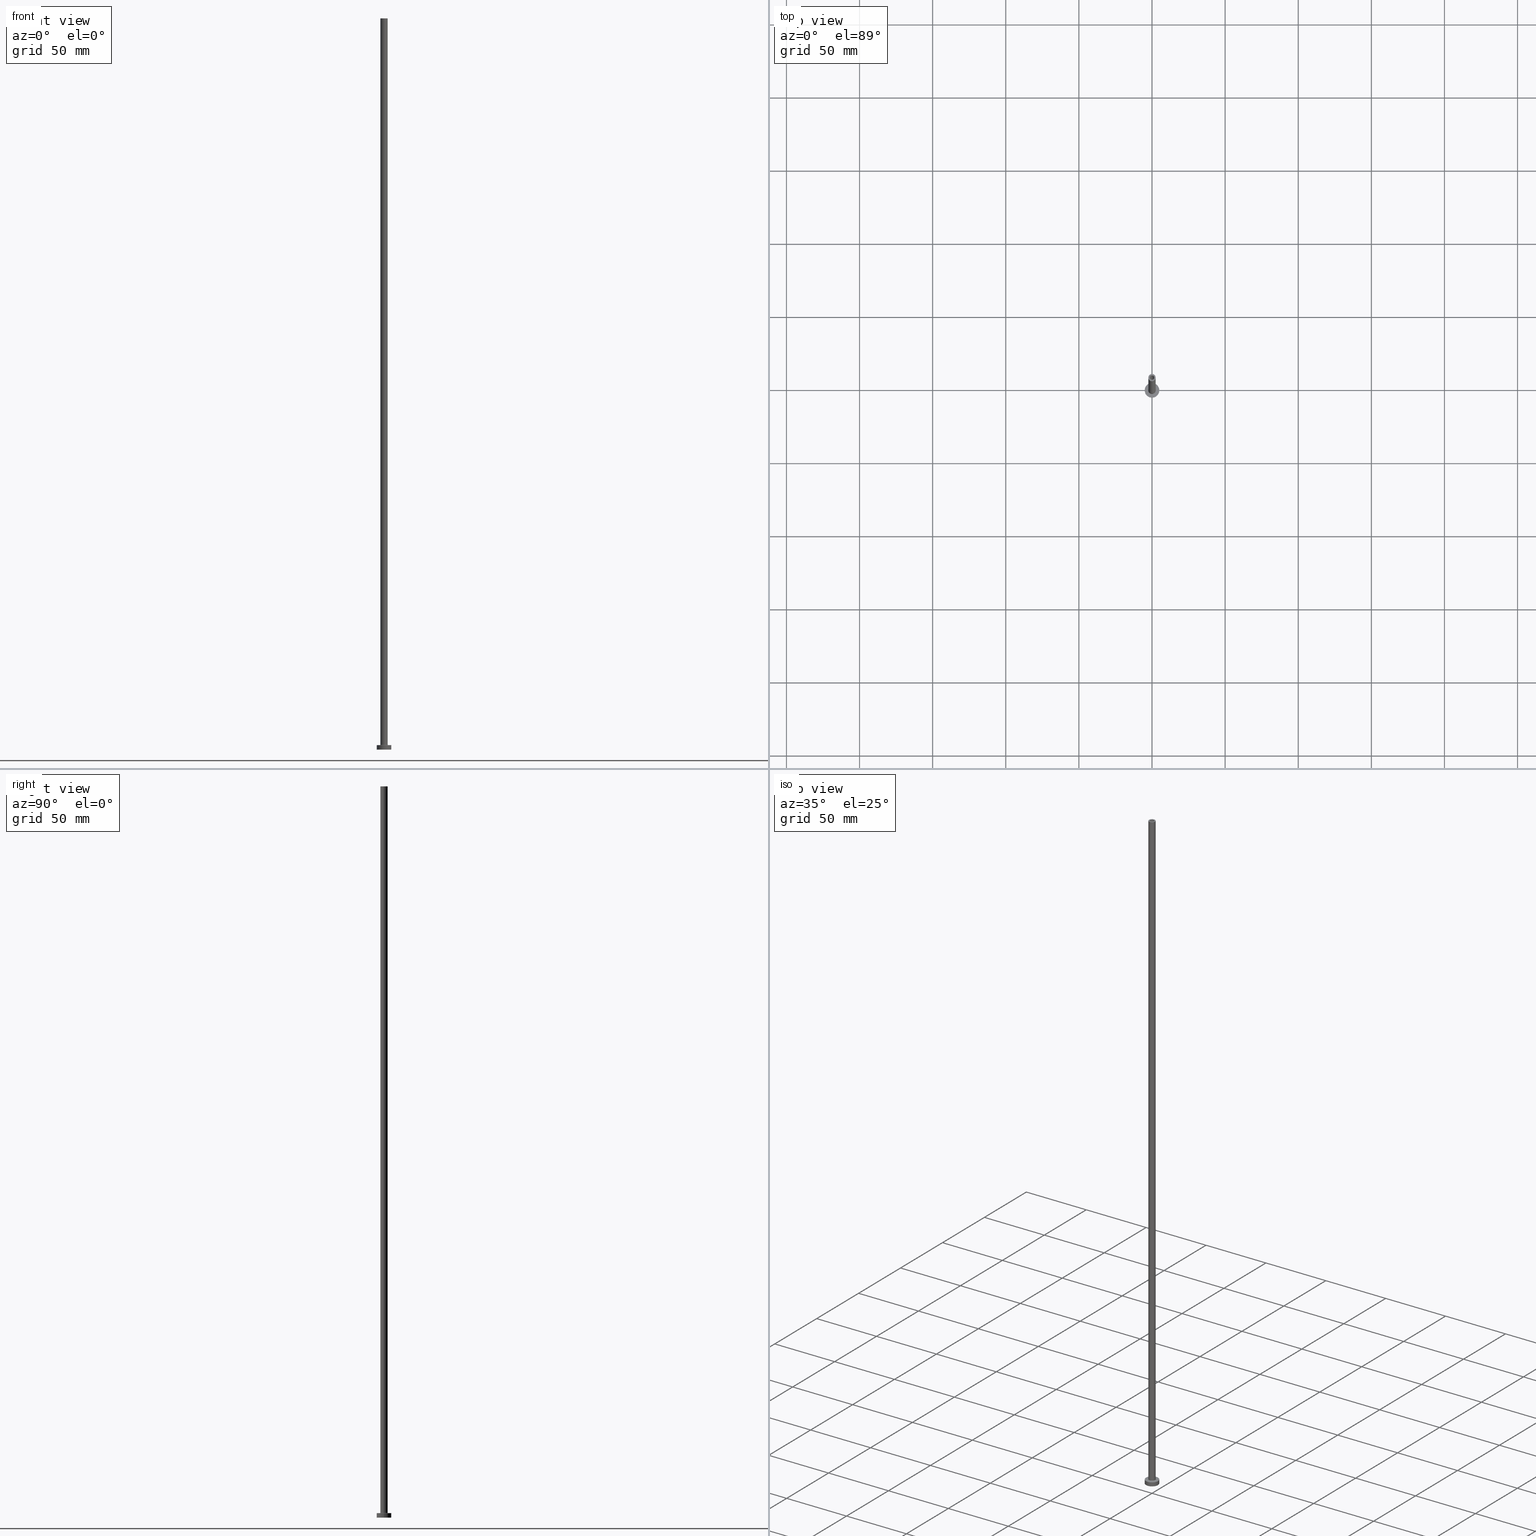
[diagram: canonical four-view strip — front | top / right | iso, engineering-drawing reading convention]
A machine part, canonical four-view strip (front | top / right | iso — engineering-drawing reading convention). The complete STEP part file that produces these views, byte-faithful:
ISO-10303-21;
HEADER;
FILE_DESCRIPTION (( 'STEP AP203' ),
    '1' );
FILE_NAME ('95dd.STEP',
    '2023-02-13T17:58:34',
    ( '' ),
    ( '' ),
    'SwSTEP 2.0',
    'SolidWorks 2019',
    '' );
FILE_SCHEMA (( 'CONFIG_CONTROL_DESIGN' ));
ENDSEC;

DATA;
#1 = DIRECTION ( 'NONE',  ( 1.000000000000000000, 0.000000000000000000, 0.000000000000000000 ) ) ;
#2 = ORIENTED_EDGE ( 'NONE', *, *, #379, .T. ) ;
#3 = PERSON_AND_ORGANIZATION_ROLE ( 'creator' ) ;
#4 = ADVANCED_FACE ( 'NONE', ( #121, #261 ), #418, .T. ) ;
#5 = DIRECTION ( 'NONE',  ( 1.000000000000000000, 0.000000000000000000, 0.000000000000000000 ) ) ;
#6 = EDGE_LOOP ( 'NONE', ( #74, #318 ) ) ;
#7 = DATE_TIME_ROLE ( 'classification_date' ) ;
#8 = EDGE_LOOP ( 'NONE', ( #71, #124, #188, #330 ) ) ;
#9 = APPLICATION_PROTOCOL_DEFINITION ( 'international standard', 'config_control_design', 1994, #94 ) ;
#10 = VECTOR ( 'NONE', #457, 1000.000000000000000 ) ;
#11 = ORIENTED_EDGE ( 'NONE', *, *, #79, .T. ) ;
#12 = CIRCLE ( 'NONE', #268, 2.799999999999999822 ) ;
#13 = DIRECTION ( 'NONE',  ( -0.000000000000000000, -0.000000000000000000, -1.000000000000000000 ) ) ;
#14 = ORIENTED_EDGE ( 'NONE', *, *, #180, .F. ) ;
#15 = LINE ( 'NONE', #51, #194 ) ;
#16 = CC_DESIGN_PERSON_AND_ORGANIZATION_ASSIGNMENT ( #358, #251, ( #206 ) ) ;
#17 = ORIENTED_EDGE ( 'NONE', *, *, #323, .F. ) ;
#18 = DIRECTION ( 'NONE',  ( -1.000000000000000000, 0.000000000000000000, 0.000000000000000000 ) ) ;
#19 = VERTEX_POINT ( 'NONE', #168 ) ;
#20 = CC_DESIGN_SECURITY_CLASSIFICATION ( #265, ( #254 ) ) ;
#21 = CARTESIAN_POINT ( 'NONE',  ( 0.000000000000000000, 0.000000000000000000, 0.000000000000000000 ) ) ;
#22 = ORIENTED_EDGE ( 'NONE', *, *, #401, .T. ) ;
#23 = CARTESIAN_POINT ( 'NONE',  ( 2.500000000000000000, 3.061616997868382648E-16, 3.300000000000025135 ) ) ;
#24 = CARTESIAN_POINT ( 'NONE',  ( 2.500000000000000000, 3.061616997868382648E-16, 500.0000000000000000 ) ) ;
#25 = CARTESIAN_POINT ( 'NONE',  ( 0.000000000000000000, 0.000000000000000000, 0.000000000000000000 ) ) ;
#26 = AXIS2_PLACEMENT_3D ( 'NONE', #300, #407, #374 ) ;
#27 = CARTESIAN_POINT ( 'NONE',  ( 0.000000000000000000, 0.000000000000000000, 500.0000000000000000 ) ) ;
#28 =( GEOMETRIC_REPRESENTATION_CONTEXT ( 3 ) GLOBAL_UNCERTAINTY_ASSIGNED_CONTEXT ( ( #343 ) ) GLOBAL_UNIT_ASSIGNED_CONTEXT ( ( #247, #109, #324 ) ) REPRESENTATION_CONTEXT ( 'NONE', 'WORKASPACE' ) );
#29 = EDGE_CURVE ( 'NONE', #50, #327, #179, .T. ) ;
#30 = DIRECTION ( 'NONE',  ( 1.000000000000000000, 0.000000000000000000, -0.000000000000000000 ) ) ;
#31 = DIRECTION ( 'NONE',  ( -1.000000000000000000, 1.224646799147353207E-16, 0.000000000000000000 ) ) ;
#32 = DIRECTION ( 'NONE',  ( 0.000000000000000000, 0.000000000000000000, 1.000000000000000000 ) ) ;
#33 = CC_DESIGN_PERSON_AND_ORGANIZATION_ASSIGNMENT ( #430, #393, ( #254 ) ) ;
#34 = DIRECTION ( 'NONE',  ( 0.000000000000000000, 0.000000000000000000, 1.000000000000000000 ) ) ;
#35 = CARTESIAN_POINT ( 'NONE',  ( 0.000000000000000000, 0.000000000000000000, 3.000000000000000000 ) ) ;
#36 = AXIS2_PLACEMENT_3D ( 'NONE', #42, #183, #338 ) ;
#37 = ORIENTED_EDGE ( 'NONE', *, *, #127, .F. ) ;
#38 = EDGE_CURVE ( 'NONE', #354, #333, #233, .T. ) ;
#39 = COORDINATED_UNIVERSAL_TIME_OFFSET ( 1, 0, .AHEAD. ) ;
#40 = DIRECTION ( 'NONE',  ( 0.000000000000000000, 0.000000000000000000, 1.000000000000000000 ) ) ;
#41 = ORIENTED_EDGE ( 'NONE', *, *, #401, .F. ) ;
#42 = CARTESIAN_POINT ( 'NONE',  ( 0.000000000000000000, 0.000000000000000000, 0.000000000000000000 ) ) ;
#43 = AXIS2_PLACEMENT_3D ( 'NONE', #269, #385, #310 ) ;
#44 = ORIENTED_EDGE ( 'NONE', *, *, #75, .T. ) ;
#45 = AXIS2_PLACEMENT_3D ( 'NONE', #214, #40, #5 ) ;
#46 = CC_DESIGN_DATE_AND_TIME_ASSIGNMENT ( #282, #285, ( #213 ) ) ;
#47 = APPROVAL_ROLE ( '' ) ;
#48 = CC_DESIGN_PERSON_AND_ORGANIZATION_ASSIGNMENT ( #250, #215, ( #265 ) ) ;
#49 = DIRECTION ( 'NONE',  ( -0.000000000000000000, -0.000000000000000000, -1.000000000000000000 ) ) ;
#50 = VERTEX_POINT ( 'NONE', #23 ) ;
#51 = CARTESIAN_POINT ( 'NONE',  ( 1.500000000000000222, 1.836970198721029934E-16, 500.0000000000000000 ) ) ;
#52 = ORIENTED_EDGE ( 'NONE', *, *, #137, .T. ) ;
#53 = EDGE_LOOP ( 'NONE', ( #212, #256, #152, #111 ) ) ;
#54 = CIRCLE ( 'NONE', #415, 2.500000000000000000 ) ;
#55 = FACE_OUTER_BOUND ( 'NONE', #228, .T. ) ;
#56 = DIRECTION ( 'NONE',  ( 1.000000000000000000, 0.000000000000000000, -0.000000000000000000 ) ) ;
#57 = ADVANCED_FACE ( 'NONE', ( #236, #307 ), #346, .T. ) ;
#58 = DIRECTION ( 'NONE',  ( 1.000000000000000000, 0.000000000000000000, 0.000000000000000000 ) ) ;
#59 = DIRECTION ( 'NONE',  ( 0.000000000000000000, 0.000000000000000000, 1.000000000000000000 ) ) ;
#60 = CARTESIAN_POINT ( 'NONE',  ( 1.500000000000000222, 1.836970198721029934E-16, 500.0000000000000000 ) ) ;
#61 = LINE ( 'NONE', #200, #217 ) ;
#62 = AXIS2_PLACEMENT_3D ( 'NONE', #458, #128, #30 ) ;
#63 = LINE ( 'NONE', #279, #10 ) ;
#64 = AXIS2_PLACEMENT_3D ( 'NONE', #99, #237, #169 ) ;
#65 = DIRECTION ( 'NONE',  ( -0.000000000000000000, -0.000000000000000000, -1.000000000000000000 ) ) ;
#66 = CARTESIAN_POINT ( 'NONE',  ( -2.799999999999999822, 3.429011037612589276E-16, 3.000000000000012434 ) ) ;
#67 = LINE ( 'NONE', #314, #147 ) ;
#68 = PERSON_AND_ORGANIZATION ( #365, #141 ) ;
#69 = CIRCLE ( 'NONE', #120, 1.650000000000000133 ) ;
#70 = AXIS2_PLACEMENT_3D ( 'NONE', #419, #270, #92 ) ;
#71 = ORIENTED_EDGE ( 'NONE', *, *, #274, .F. ) ;
#72 = MECHANICAL_CONTEXT ( 'NONE', #94, 'mechanical' ) ;
#73 = APPROVAL_DATE_TIME ( #437, #131 ) ;
#74 = ORIENTED_EDGE ( 'NONE', *, *, #208, .F. ) ;
#75 = EDGE_CURVE ( 'NONE', #444, #405, #273, .T. ) ;
#76 = ORIENTED_EDGE ( 'NONE', *, *, #391, .F. ) ;
#77 = COORDINATED_UNIVERSAL_TIME_OFFSET ( 1, 0, .AHEAD. ) ;
#78 = VERTEX_POINT ( 'NONE', #422 ) ;
#79 = EDGE_CURVE ( 'NONE', #50, #19, #242, .T. ) ;
#80 = DIRECTION ( 'NONE',  ( 0.000000000000000000, 0.000000000000000000, 1.000000000000000000 ) ) ;
#81 = AXIS2_PLACEMENT_3D ( 'NONE', #166, #59, #238 ) ;
#82 = EDGE_LOOP ( 'NONE', ( #17, #176, #116, #396 ) ) ;
#83 = DIRECTION ( 'NONE',  ( 1.000000000000000000, 0.000000000000000000, 0.000000000000000000 ) ) ;
#84 = VERTEX_POINT ( 'NONE', #88 ) ;
#85 = DIRECTION ( 'NONE',  ( 0.000000000000000000, 0.000000000000000000, 1.000000000000000000 ) ) ;
#86 = ORIENTED_EDGE ( 'NONE', *, *, #291, .T. ) ;
#87 = CARTESIAN_POINT ( 'NONE',  ( 0.000000000000000000, 0.000000000000000000, 3.300000000000025135 ) ) ;
#88 = CARTESIAN_POINT ( 'NONE',  ( -1.650000000000000133, 0.000000000000000000, 455.0000000000000000 ) ) ;
#89 = VECTOR ( 'NONE', #13, 1000.000000000000000 ) ;
#90 = LINE ( 'NONE', #259, #146 ) ;
#91 = DIRECTION ( 'NONE',  ( 0.000000000000000000, 0.000000000000000000, -1.000000000000000000 ) ) ;
#92 = DIRECTION ( 'NONE',  ( -1.000000000000000000, 0.000000000000000000, 0.000000000000000000 ) ) ;
#93 = CARTESIAN_POINT ( 'NONE',  ( -1.500000000000000222, 0.000000000000000000, 500.0000000000000000 ) ) ;
#94 = APPLICATION_CONTEXT ( 'configuration controlled 3d designs of mechanical parts and assemblies' ) ;
#95 = CARTESIAN_POINT ( 'NONE',  ( 0.000000000000000000, 0.000000000000000000, 455.0000000000000000 ) ) ;
#96 = CARTESIAN_POINT ( 'NONE',  ( 1.650000000000000133, 2.020667218593133001E-16, 459.6669047558312400 ) ) ;
#97 = AXIS2_PLACEMENT_3D ( 'NONE', #126, #443, #149 ) ;
#98 = FACE_OUTER_BOUND ( 'NONE', #53, .T. ) ;
#99 = CARTESIAN_POINT ( 'NONE',  ( 0.000000000000000000, 0.000000000000000000, 455.0000000000000000 ) ) ;
#100 = EDGE_CURVE ( 'NONE', #225, #182, #276, .T. ) ;
#101 = CARTESIAN_POINT ( 'NONE',  ( -5.000000000000000000, 0.000000000000000000, 0.000000000000000000 ) ) ;
#102 = ORIENTED_EDGE ( 'NONE', *, *, #38, .F. ) ;
#103 = PRODUCT_DEFINITION_SHAPE ( 'NONE', 'NONE',  #213 ) ;
#104 = CC_DESIGN_APPROVAL ( #321, ( #265 ) ) ;
#105 = APPROVAL_STATUS ( 'not_yet_approved' ) ;
#106 = CIRCLE ( 'NONE', #417, 2.500000000000000000 ) ;
#107 = ORIENTED_EDGE ( 'NONE', *, *, #379, .F. ) ;
#108 = CC_DESIGN_PERSON_AND_ORGANIZATION_ASSIGNMENT ( #316, #3, ( #213 ) ) ;
#109 =( NAMED_UNIT ( * ) PLANE_ANGLE_UNIT ( ) SI_UNIT ( $, .RADIAN. ) );
#110 = APPLICATION_CONTEXT ( 'configuration controlled 3d designs of mechanical parts and assemblies' ) ;
#111 = ORIENTED_EDGE ( 'NONE', *, *, #38, .T. ) ;
#112 = LOCAL_TIME ( 18, 58, 34.00000000000000000, #398 ) ;
#113 = COORDINATED_UNIVERSAL_TIME_OFFSET ( 1, 0, .AHEAD. ) ;
#114 = CIRCLE ( 'NONE', #210, 2.500000000000000000 ) ;
#115 = ORIENTED_EDGE ( 'NONE', *, *, #172, .F. ) ;
#116 = ORIENTED_EDGE ( 'NONE', *, *, #218, .T. ) ;
#117 = FACE_OUTER_BOUND ( 'NONE', #216, .T. ) ;
#118 = EDGE_LOOP ( 'NONE', ( #258, #294, #11, #361 ) ) ;
#119 = LINE ( 'NONE', #326, #89 ) ;
#120 = AXIS2_PLACEMENT_3D ( 'NONE', #21, #156, #449 ) ;
#121 = FACE_BOUND ( 'NONE', #219, .T. ) ;
#122 = AXIS2_PLACEMENT_3D ( 'NONE', #161, #34, #58 ) ;
#123 = FACE_BOUND ( 'NONE', #412, .T. ) ;
#124 = ORIENTED_EDGE ( 'NONE', *, *, #204, .T. ) ;
#125 = EDGE_LOOP ( 'NONE', ( #148, #252 ) ) ;
#126 = CARTESIAN_POINT ( 'NONE',  ( 0.000000000000000000, 0.000000000000000000, 455.0000000000000000 ) ) ;
#127 = EDGE_CURVE ( 'NONE', #84, #444, #171, .T. ) ;
#128 = DIRECTION ( 'NONE',  ( 0.000000000000000000, 0.000000000000000000, 1.000000000000000000 ) ) ;
#129 = FACE_OUTER_BOUND ( 'NONE', #433, .T. ) ;
#130 = DIRECTION ( 'NONE',  ( 1.000000000000000000, 0.000000000000000000, 0.000000000000000000 ) ) ;
#131 = APPROVAL ( #105, 'NEUR�EN�' ) ;
#132 = CARTESIAN_POINT ( 'NONE',  ( 5.000000000000000000, 6.123233995736766282E-16, 0.000000000000000000 ) ) ;
#133 = DIRECTION ( 'NONE',  ( 1.000000000000000000, 0.000000000000000000, 0.000000000000000000 ) ) ;
#134 = DIRECTION ( 'NONE',  ( 0.000000000000000000, 0.000000000000000000, 1.000000000000000000 ) ) ;
#135 = DIRECTION ( 'NONE',  ( -1.000000000000000000, 0.000000000000000000, 0.000000000000000000 ) ) ;
#136 = CYLINDRICAL_SURFACE ( 'NONE', #70, 5.000000000000000000 ) ;
#137 = EDGE_CURVE ( 'NONE', #333, #354, #319, .T. ) ;
#138 = PERSON_AND_ORGANIZATION_ROLE ( 'design_supplier' ) ;
#139 = APPROVAL_STATUS ( 'not_yet_approved' ) ;
#140 = TOROIDAL_SURFACE ( 'NONE', #241, 2.799999999999999822, 0.2999999999999999889 ) ;
#141 = ORGANIZATION ( 'NEUR�EN�', 'NEUR�EN�', '' ) ;
#142 = VERTEX_POINT ( 'NONE', #93 ) ;
#143 = PERSON_AND_ORGANIZATION ( #365, #141 ) ;
#144 = ORIENTED_EDGE ( 'NONE', *, *, #274, .T. ) ;
#145 = CALENDAR_DATE ( 2023, 13, 2 ) ;
#146 = VECTOR ( 'NONE', #452, 1000.000000000000000 ) ;
#147 = VECTOR ( 'NONE', #340, 1000.000000000000000 ) ;
#148 = ORIENTED_EDGE ( 'NONE', *, *, #100, .T. ) ;
#149 = DIRECTION ( 'NONE',  ( 1.000000000000000000, 0.000000000000000000, -0.000000000000000000 ) ) ;
#150 = EDGE_LOOP ( 'NONE', ( #427, #144, #41, #76 ) ) ;
#151 = DIRECTION ( 'NONE',  ( 1.000000000000000000, 0.000000000000000000, 0.000000000000000000 ) ) ;
#152 = ORIENTED_EDGE ( 'NONE', *, *, #180, .T. ) ;
#153 = CARTESIAN_POINT ( 'NONE',  ( -2.500000000000000000, 0.000000000000000000, 500.0000000000000000 ) ) ;
#154 = AXIS2_PLACEMENT_3D ( 'NONE', #404, #80, #151 ) ;
#155 = EDGE_LOOP ( 'NONE', ( #102, #264 ) ) ;
#156 = DIRECTION ( 'NONE',  ( -0.000000000000000000, -0.000000000000000000, -1.000000000000000000 ) ) ;
#157 = ORIENTED_EDGE ( 'NONE', *, *, #75, .F. ) ;
#158 = EDGE_CURVE ( 'NONE', #182, #333, #61, .T. ) ;
#159 = PLANE ( 'NONE',  #97 ) ;
#160 = DIRECTION ( 'NONE',  ( 1.000000000000000000, 0.000000000000000000, 0.000000000000000000 ) ) ;
#161 = CARTESIAN_POINT ( 'NONE',  ( 0.000000000000000000, 0.000000000000000000, 3.000000000000000000 ) ) ;
#162 = CARTESIAN_POINT ( 'NONE',  ( 0.000000000000000000, 0.000000000000000000, 455.0000000000000000 ) ) ;
#163 = VECTOR ( 'NONE', #381, 1000.000000000000000 ) ;
#164 = DIRECTION ( 'NONE',  ( 1.000000000000000000, 0.000000000000000000, 0.000000000000000000 ) ) ;
#165 = ADVANCED_FACE ( 'NONE', ( #205, #453 ), #349, .F. ) ;
#166 = CARTESIAN_POINT ( 'NONE',  ( 0.000000000000000000, 0.000000000000000000, 3.000000000000000000 ) ) ;
#167 = DIRECTION ( 'NONE',  ( -0.000000000000000000, -0.000000000000000000, -1.000000000000000000 ) ) ;
#168 = CARTESIAN_POINT ( 'NONE',  ( -2.500000000000000000, 0.000000000000000000, 3.300000000000025135 ) ) ;
#169 = DIRECTION ( 'NONE',  ( 1.000000000000000000, 0.000000000000000000, 0.000000000000000000 ) ) ;
#170 = CC_DESIGN_APPROVAL ( #131, ( #254 ) ) ;
#171 = CIRCLE ( 'NONE', #428, 1.650000000000000133 ) ;
#172 = EDGE_CURVE ( 'NONE', #19, #50, #54, .T. ) ;
#173 = CARTESIAN_POINT ( 'NONE',  ( -1.650000000000000133, 0.000000000000000000, 459.6669047558312400 ) ) ;
#174 = ADVANCED_FACE ( 'NONE', ( #335 ), #193, .T. ) ;
#175 = CALENDAR_DATE ( 2023, 13, 2 ) ;
#176 = ORIENTED_EDGE ( 'NONE', *, *, #397, .F. ) ;
#177 = APPROVAL_PERSON_ORGANIZATION ( #143, #321, #47 ) ;
#178 = DIRECTION ( 'NONE',  ( 0.000000000000000000, 0.000000000000000000, -1.000000000000000000 ) ) ;
#179 = CIRCLE ( 'NONE', #387, 0.2999999999999999334 ) ;
#180 = EDGE_CURVE ( 'NONE', #225, #354, #90, .T. ) ;
#181 = DIRECTION ( 'NONE',  ( -1.000000000000000000, 0.000000000000000000, 0.000000000000000000 ) ) ;
#182 = VERTEX_POINT ( 'NONE', #377 ) ;
#183 = DIRECTION ( 'NONE',  ( -0.000000000000000000, -0.000000000000000000, -1.000000000000000000 ) ) ;
#184 = CIRCLE ( 'NONE', #122, 5.000000000000000000 ) ;
#185 = ORIENTED_EDGE ( 'NONE', *, *, #257, .F. ) ;
#186 = EDGE_CURVE ( 'NONE', #142, #448, #434, .T. ) ;
#187 = CARTESIAN_POINT ( 'NONE',  ( 0.000000000000000000, 0.000000000000000000, 459.6669047558312400 ) ) ;
#188 = ORIENTED_EDGE ( 'NONE', *, *, #391, .T. ) ;
#189 = CARTESIAN_POINT ( 'NONE',  ( 0.000000000000000000, 0.000000000000000000, 500.0000000000000000 ) ) ;
#190 = EDGE_CURVE ( 'NONE', #405, #366, #249, .T. ) ;
#191 = ORIENTED_EDGE ( 'NONE', *, *, #29, .F. ) ;
#192 = CC_DESIGN_APPROVAL ( #244, ( #213 ) ) ;
#193 = CYLINDRICAL_SURFACE ( 'NONE', #26, 2.500000000000000000 ) ;
#194 = VECTOR ( 'NONE', #293, 1000.000000000000000 ) ;
#195 = ORIENTED_EDGE ( 'NONE', *, *, #186, .F. ) ;
#196 = CARTESIAN_POINT ( 'NONE',  ( 0.000000000000000000, 0.000000000000000000, 3.300000000000025135 ) ) ;
#197 = CYLINDRICAL_SURFACE ( 'NONE', #353, 1.500000000000000222 ) ;
#198 = CARTESIAN_POINT ( 'NONE',  ( 2.799999999999999822, 0.000000000000000000, 3.300000000000025135 ) ) ;
#199 = FACE_OUTER_BOUND ( 'NONE', #8, .T. ) ;
#200 = CARTESIAN_POINT ( 'NONE',  ( 5.000000000000000000, 6.123233995736766282E-16, 3.000000000000000000 ) ) ;
#201 = CIRCLE ( 'NONE', #224, 1.500000000000000222 ) ;
#202 = DIRECTION ( 'NONE',  ( 1.224646799147353207E-16, 1.000000000000000000, -0.000000000000000000 ) ) ;
#203 = DESIGN_CONTEXT ( 'detailed design', #110, 'design' ) ;
#204 = EDGE_CURVE ( 'NONE', #448, #142, #281, .T. ) ;
#205 = FACE_BOUND ( 'NONE', #6, .T. ) ;
#206 = PRODUCT ( '95dd', '95dd', '', ( #72 ) ) ;
#207 = FACE_OUTER_BOUND ( 'NONE', #150, .T. ) ;
#208 = EDGE_CURVE ( 'NONE', #366, #405, #69, .T. ) ;
#209 = DIRECTION ( 'NONE',  ( 0.000000000000000000, 0.000000000000000000, 1.000000000000000000 ) ) ;
#210 = AXIS2_PLACEMENT_3D ( 'NONE', #411, #275, #306 ) ;
#211 = PERSON_AND_ORGANIZATION ( #365, #141 ) ;
#212 = ORIENTED_EDGE ( 'NONE', *, *, #158, .F. ) ;
#213 = PRODUCT_DEFINITION ( 'NEZN�M�', '', #254, #203 ) ;
#214 = CARTESIAN_POINT ( 'NONE',  ( 0.000000000000000000, 0.000000000000000000, 0.000000000000000000 ) ) ;
#215 = PERSON_AND_ORGANIZATION_ROLE ( 'classification_officer' ) ;
#216 = EDGE_LOOP ( 'NONE', ( #115, #2, #185, #191 ) ) ;
#217 = VECTOR ( 'NONE', #65, 1000.000000000000000 ) ;
#218 = EDGE_CURVE ( 'NONE', #289, #19, #119, .T. ) ;
#219 = EDGE_LOOP ( 'NONE', ( #439, #315 ) ) ;
#220 = ADVANCED_FACE ( 'NONE', ( #296 ), #140, .F. ) ;
#221 = EDGE_LOOP ( 'NONE', ( #442, #86 ) ) ;
#222 = CARTESIAN_POINT ( 'NONE',  ( 0.000000000000000000, 0.000000000000000000, 3.000000000000000000 ) ) ;
#223 = AXIS2_PLACEMENT_3D ( 'NONE', #378, #32, #56 ) ;
#224 = AXIS2_PLACEMENT_3D ( 'NONE', #351, #134, #424 ) ;
#225 = VERTEX_POINT ( 'NONE', #413 ) ;
#226 = ADVANCED_FACE ( 'NONE', ( #123, #55 ), #159, .F. ) ;
#227 = FACE_OUTER_BOUND ( 'NONE', #82, .T. ) ;
#228 = EDGE_LOOP ( 'NONE', ( #37, #356 ) ) ;
#229 = CARTESIAN_POINT ( 'NONE',  ( 0.000000000000000000, 0.000000000000000000, 500.0000000000000000 ) ) ;
#230 = VERTEX_POINT ( 'NONE', #371 ) ;
#231 = LOCAL_TIME ( 18, 58, 34.00000000000000000, #39 ) ;
#232 = DIRECTION ( 'NONE',  ( 0.000000000000000000, 0.000000000000000000, 1.000000000000000000 ) ) ;
#233 = CIRCLE ( 'NONE', #446, 5.000000000000000000 ) ;
#234 = DIRECTION ( 'NONE',  ( 0.000000000000000000, 0.000000000000000000, 1.000000000000000000 ) ) ;
#235 = DIRECTION ( 'NONE',  ( 0.000000000000000000, 0.000000000000000000, 1.000000000000000000 ) ) ;
#236 = FACE_BOUND ( 'NONE', #260, .T. ) ;
#237 = DIRECTION ( 'NONE',  ( 0.000000000000000000, 0.000000000000000000, 1.000000000000000000 ) ) ;
#238 = DIRECTION ( 'NONE',  ( 1.000000000000000000, 0.000000000000000000, -0.000000000000000000 ) ) ;
#239 = CARTESIAN_POINT ( 'NONE',  ( 0.000000000000000000, 0.000000000000000000, 500.0000000000000000 ) ) ;
#240 = DIRECTION ( 'NONE',  ( 1.000000000000000000, 0.000000000000000000, 0.000000000000000000 ) ) ;
#241 = AXIS2_PLACEMENT_3D ( 'NONE', #87, #232, #368 ) ;
#242 = CIRCLE ( 'NONE', #43, 2.500000000000000000 ) ;
#243 = DIRECTION ( 'NONE',  ( -1.000000000000000000, 0.000000000000000000, 0.000000000000000000 ) ) ;
#244 = APPROVAL ( #139, 'NEUR�EN�' ) ;
#245 = CARTESIAN_POINT ( 'NONE',  ( 0.000000000000000000, 0.000000000000000000, 3.000000000000000000 ) ) ;
#246 = ADVANCED_FACE ( 'NONE', ( #266 ), #416, .F. ) ;
#247 =( LENGTH_UNIT ( ) NAMED_UNIT ( * ) SI_UNIT ( .MILLI., .METRE. ) );
#248 = ADVANCED_FACE ( 'NONE', ( #117 ), #360, .F. ) ;
#249 = CIRCLE ( 'NONE', #36, 1.650000000000000133 ) ;
#250 = PERSON_AND_ORGANIZATION ( #365, #141 ) ;
#251 = PERSON_AND_ORGANIZATION_ROLE ( 'design_owner' ) ;
#252 = ORIENTED_EDGE ( 'NONE', *, *, #357, .T. ) ;
#253 = DATE_AND_TIME ( #320, #231 ) ;
#254 = PRODUCT_DEFINITION_FORMATION_WITH_SPECIFIED_SOURCE ( 'LIBOVOLN�', '', #206, .NOT_KNOWN. ) ;
#255 = ORIENTED_EDGE ( 'NONE', *, *, #190, .T. ) ;
#256 = ORIENTED_EDGE ( 'NONE', *, *, #100, .F. ) ;
#257 = EDGE_CURVE ( 'NONE', #327, #325, #352, .T. ) ;
#258 = ORIENTED_EDGE ( 'NONE', *, *, #291, .F. ) ;
#259 = CARTESIAN_POINT ( 'NONE',  ( -5.000000000000000000, 0.000000000000000000, 3.000000000000000000 ) ) ;
#260 = EDGE_LOOP ( 'NONE', ( #195, #435 ) ) ;
#261 = FACE_OUTER_BOUND ( 'NONE', #125, .T. ) ;
#262 = CYLINDRICAL_SURFACE ( 'NONE', #313, 2.500000000000000000 ) ;
#263 = ORIENTED_EDGE ( 'NONE', *, *, #329, .F. ) ;
#264 = ORIENTED_EDGE ( 'NONE', *, *, #137, .F. ) ;
#265 = SECURITY_CLASSIFICATION ( '', '', #280 ) ;
#266 = FACE_OUTER_BOUND ( 'NONE', #372, .T. ) ;
#267 = VECTOR ( 'NONE', #312, 1000.000000000000000 ) ;
#268 = AXIS2_PLACEMENT_3D ( 'NONE', #35, #455, #1 ) ;
#269 = CARTESIAN_POINT ( 'NONE',  ( 0.000000000000000000, 0.000000000000000000, 3.300000000000025135 ) ) ;
#270 = DIRECTION ( 'NONE',  ( -0.000000000000000000, -0.000000000000000000, -1.000000000000000000 ) ) ;
#271 = CARTESIAN_POINT ( 'NONE',  ( 0.000000000000000000, 0.000000000000000000, 0.000000000000000000 ) ) ;
#272 = DIRECTION ( 'NONE',  ( 0.000000000000000000, 0.000000000000000000, -1.000000000000000000 ) ) ;
#273 = LINE ( 'NONE', #96, #163 ) ;
#274 = EDGE_CURVE ( 'NONE', #448, #230, #15, .T. ) ;
#275 = DIRECTION ( 'NONE',  ( 0.000000000000000000, 0.000000000000000000, 1.000000000000000000 ) ) ;
#276 = CIRCLE ( 'NONE', #295, 5.000000000000000000 ) ;
#277 = AXIS2_PLACEMENT_3D ( 'NONE', #95, #386, #164 ) ;
#278 = LINE ( 'NONE', #173, #267 ) ;
#279 = CARTESIAN_POINT ( 'NONE',  ( 2.500000000000000000, 3.061616997868382648E-16, 500.0000000000000000 ) ) ;
#280 = SECURITY_CLASSIFICATION_LEVEL ( 'unclassified' ) ;
#281 = CIRCLE ( 'NONE', #286, 1.500000000000000222 ) ;
#282 = DATE_AND_TIME ( #145, #460 ) ;
#283 = ORIENTED_EDGE ( 'NONE', *, *, #370, .T. ) ;
#284 = ADVANCED_FACE ( 'NONE', ( #227 ), #262, .T. ) ;
#285 = DATE_TIME_ROLE ( 'creation_date' ) ;
#286 = AXIS2_PLACEMENT_3D ( 'NONE', #299, #85, #447 ) ;
#287 = APPROVAL_ROLE ( '' ) ;
#288 = AXIS2_PLACEMENT_3D ( 'NONE', #461, #202, #31 ) ;
#289 = VERTEX_POINT ( 'NONE', #153 ) ;
#290 = DIRECTION ( 'NONE',  ( 0.000000000000000000, 0.000000000000000000, -1.000000000000000000 ) ) ;
#291 = EDGE_CURVE ( 'NONE', #400, #289, #114, .T. ) ;
#292 = ORIENTED_EDGE ( 'NONE', *, *, #158, .T. ) ;
#293 = DIRECTION ( 'NONE',  ( 0.000000000000000000, 0.000000000000000000, -1.000000000000000000 ) ) ;
#294 = ORIENTED_EDGE ( 'NONE', *, *, #323, .T. ) ;
#295 = AXIS2_PLACEMENT_3D ( 'NONE', #301, #456, #240 ) ;
#296 = FACE_OUTER_BOUND ( 'NONE', #402, .T. ) ;
#297 = CIRCLE ( 'NONE', #277, 1.500000000000000222 ) ;
#298 = ORIENTED_EDGE ( 'NONE', *, *, #127, .T. ) ;
#299 = CARTESIAN_POINT ( 'NONE',  ( 0.000000000000000000, 0.000000000000000000, 500.0000000000000000 ) ) ;
#300 = CARTESIAN_POINT ( 'NONE',  ( 0.000000000000000000, 0.000000000000000000, 500.0000000000000000 ) ) ;
#301 = CARTESIAN_POINT ( 'NONE',  ( 0.000000000000000000, 0.000000000000000000, 3.000000000000000000 ) ) ;
#302 = CARTESIAN_POINT ( 'NONE',  ( 1.650000000000000133, 2.020667218593133001E-16, 0.000000000000000000 ) ) ;
#303 = LOCAL_TIME ( 18, 58, 34.00000000000000000, #77 ) ;
#304 = AXIS2_PLACEMENT_3D ( 'NONE', #187, #290, #440 ) ;
#305 = DIRECTION ( 'NONE',  ( 0.000000000000000000, 0.000000000000000000, 1.000000000000000000 ) ) ;
#306 = DIRECTION ( 'NONE',  ( 1.000000000000000000, 0.000000000000000000, 0.000000000000000000 ) ) ;
#307 = FACE_OUTER_BOUND ( 'NONE', #221, .T. ) ;
#308 = CC_DESIGN_PERSON_AND_ORGANIZATION_ASSIGNMENT ( #68, #138, ( #254 ) ) ;
#309 = DIRECTION ( 'NONE',  ( 1.000000000000000000, 0.000000000000000000, 0.000000000000000000 ) ) ;
#310 = DIRECTION ( 'NONE',  ( 1.000000000000000000, 0.000000000000000000, 0.000000000000000000 ) ) ;
#311 = APPROVAL_PERSON_ORGANIZATION ( #211, #131, #287 ) ;
#312 = DIRECTION ( 'NONE',  ( 0.000000000000000000, 0.000000000000000000, -1.000000000000000000 ) ) ;
#313 = AXIS2_PLACEMENT_3D ( 'NONE', #189, #332, #18 ) ;
#314 = CARTESIAN_POINT ( 'NONE',  ( -1.500000000000000222, 0.000000000000000000, 500.0000000000000000 ) ) ;
#315 = ORIENTED_EDGE ( 'NONE', *, *, #438, .T. ) ;
#316 = PERSON_AND_ORGANIZATION ( #365, #141 ) ;
#317 = ORIENTED_EDGE ( 'NONE', *, *, #79, .F. ) ;
#318 = ORIENTED_EDGE ( 'NONE', *, *, #190, .F. ) ;
#319 = CIRCLE ( 'NONE', #445, 5.000000000000000000 ) ;
#320 = CALENDAR_DATE ( 2023, 13, 2 ) ;
#321 = APPROVAL ( #375, 'NEUR�EN�' ) ;
#322 = APPLICATION_PROTOCOL_DEFINITION ( 'international standard', 'config_control_design', 1994, #110 ) ;
#323 = EDGE_CURVE ( 'NONE', #400, #50, #63, .T. ) ;
#324 =( NAMED_UNIT ( * ) SI_UNIT ( $, .STERADIAN. ) SOLID_ANGLE_UNIT ( ) );
#325 = VERTEX_POINT ( 'NONE', #66 ) ;
#326 = CARTESIAN_POINT ( 'NONE',  ( -2.500000000000000000, 0.000000000000000000, 500.0000000000000000 ) ) ;
#327 = VERTEX_POINT ( 'NONE', #347 ) ;
#328 = DIRECTION ( 'NONE',  ( 1.000000000000000000, 0.000000000000000000, 0.000000000000000000 ) ) ;
#329 = EDGE_CURVE ( 'NONE', #84, #366, #278, .T. ) ;
#330 = ORIENTED_EDGE ( 'NONE', *, *, #370, .F. ) ;
#331 = SHAPE_DEFINITION_REPRESENTATION ( #103, #384 ) ;
#332 = DIRECTION ( 'NONE',  ( -0.000000000000000000, -0.000000000000000000, -1.000000000000000000 ) ) ;
#333 = VERTEX_POINT ( 'NONE', #132 ) ;
#334 = AXIS2_PLACEMENT_3D ( 'NONE', #222, #49, #328 ) ;
#335 = FACE_OUTER_BOUND ( 'NONE', #118, .T. ) ;
#336 = ORIENTED_EDGE ( 'NONE', *, *, #426, .T. ) ;
#337 = DATE_AND_TIME ( #373, #303 ) ;
#338 = DIRECTION ( 'NONE',  ( 1.000000000000000000, 0.000000000000000000, 0.000000000000000000 ) ) ;
#339 = DIRECTION ( 'NONE',  ( 0.000000000000000000, 0.000000000000000000, 1.000000000000000000 ) ) ;
#340 = DIRECTION ( 'NONE',  ( 0.000000000000000000, 0.000000000000000000, -1.000000000000000000 ) ) ;
#341 = DIRECTION ( 'NONE',  ( 0.000000000000000000, -1.000000000000000000, 0.000000000000000000 ) ) ;
#342 = CYLINDRICAL_SURFACE ( 'NONE', #395, 1.500000000000000222 ) ;
#343 = UNCERTAINTY_MEASURE_WITH_UNIT (LENGTH_MEASURE( 1.000000000000000082E-05 ), #247, 'distance_accuracy_value', 'NONE');
#344 = ADVANCED_FACE ( 'NONE', ( #380 ), #350, .F. ) ;
#345 = CIRCLE ( 'NONE', #64, 1.650000000000000133 ) ;
#346 = PLANE ( 'NONE',  #62 ) ;
#347 = CARTESIAN_POINT ( 'NONE',  ( 2.799999999999999822, 0.000000000000000000, 3.000000000000012434 ) ) ;
#348 = ADVANCED_FACE ( 'NONE', ( #207 ), #197, .F. ) ;
#349 = PLANE ( 'NONE',  #223 ) ;
#350 = CYLINDRICAL_SURFACE ( 'NONE', #394, 1.650000000000000133 ) ;
#351 = CARTESIAN_POINT ( 'NONE',  ( 0.000000000000000000, 0.000000000000000000, 455.0000000000000000 ) ) ;
#352 = CIRCLE ( 'NONE', #334, 2.799999999999999822 ) ;
#353 = AXIS2_PLACEMENT_3D ( 'NONE', #239, #272, #243 ) ;
#354 = VERTEX_POINT ( 'NONE', #101 ) ;
#355 = PERSON_AND_ORGANIZATION ( #365, #141 ) ;
#356 = ORIENTED_EDGE ( 'NONE', *, *, #426, .F. ) ;
#357 = EDGE_CURVE ( 'NONE', #182, #225, #184, .T. ) ;
#358 = PERSON_AND_ORGANIZATION ( #365, #141 ) ;
#359 = APPROVAL_DATE_TIME ( #399, #244 ) ;
#360 = TOROIDAL_SURFACE ( 'NONE', #154, 2.799999999999999822, 0.2999999999999999889 ) ;
#361 = ORIENTED_EDGE ( 'NONE', *, *, #218, .F. ) ;
#362 = APPROVAL_ROLE ( '' ) ;
#363 = MANIFOLD_SOLID_BREP ( 'Odebrat vysunut�m4', #376 ) ;
#364 = CALENDAR_DATE ( 2023, 13, 2 ) ;
#365 = PERSON ( 'NEUR�EN�', 'NEUR�EN�', 'NEUR�EN�', ('NEUR�EN�'), ('NEUR�EN�'), ('NEUR�EN�') ) ;
#366 = VERTEX_POINT ( 'NONE', #421 ) ;
#367 = AXIS2_PLACEMENT_3D ( 'NONE', #245, #167, #135 ) ;
#368 = DIRECTION ( 'NONE',  ( 1.000000000000000000, 0.000000000000000000, 0.000000000000000000 ) ) ;
#369 = EDGE_LOOP ( 'NONE', ( #157, #336, #414, #431 ) ) ;
#370 = EDGE_CURVE ( 'NONE', #230, #78, #297, .T. ) ;
#371 = CARTESIAN_POINT ( 'NONE',  ( 1.500000000000000222, 1.836970198721029934E-16, 455.0000000000000000 ) ) ;
#372 = EDGE_LOOP ( 'NONE', ( #298, #44, #255, #263 ) ) ;
#373 = CALENDAR_DATE ( 2023, 13, 2 ) ;
#374 = DIRECTION ( 'NONE',  ( -1.000000000000000000, 0.000000000000000000, 0.000000000000000000 ) ) ;
#375 = APPROVAL_STATUS ( 'not_yet_approved' ) ;
#376 = CLOSED_SHELL ( 'NONE', ( #348, #246, #248, #174, #441, #382, #4, #165, #284, #57, #220, #344, #226, #451 ) ) ;
#377 = CARTESIAN_POINT ( 'NONE',  ( 5.000000000000000000, 6.123233995736766282E-16, 3.000000000000000000 ) ) ;
#378 = CARTESIAN_POINT ( 'NONE',  ( 0.000000000000000000, 0.000000000000000000, 0.000000000000000000 ) ) ;
#379 = EDGE_CURVE ( 'NONE', #19, #325, #436, .T. ) ;
#380 = FACE_OUTER_BOUND ( 'NONE', #369, .T. ) ;
#381 = DIRECTION ( 'NONE',  ( 0.000000000000000000, 0.000000000000000000, -1.000000000000000000 ) ) ;
#382 = ADVANCED_FACE ( 'NONE', ( #98 ), #392, .T. ) ;
#383 = CARTESIAN_POINT ( 'NONE',  ( 1.650000000000000133, 2.020667218593133001E-16, 455.0000000000000000 ) ) ;
#384 = ADVANCED_BREP_SHAPE_REPRESENTATION ( '95dd', ( #363, #45 ), #28 ) ;
#385 = DIRECTION ( 'NONE',  ( 0.000000000000000000, 0.000000000000000000, 1.000000000000000000 ) ) ;
#386 = DIRECTION ( 'NONE',  ( 0.000000000000000000, 0.000000000000000000, 1.000000000000000000 ) ) ;
#387 = AXIS2_PLACEMENT_3D ( 'NONE', #198, #341, #91 ) ;
#388 = LOCAL_TIME ( 18, 58, 34.00000000000000000, #432 ) ;
#389 = DIRECTION ( 'NONE',  ( 1.000000000000000000, 0.000000000000000000, 0.000000000000000000 ) ) ;
#390 = CARTESIAN_POINT ( 'NONE',  ( 0.000000000000000000, 0.000000000000000000, 500.0000000000000000 ) ) ;
#391 = EDGE_CURVE ( 'NONE', #142, #78, #67, .T. ) ;
#392 = CYLINDRICAL_SURFACE ( 'NONE', #367, 5.000000000000000000 ) ;
#393 = PERSON_AND_ORGANIZATION_ROLE ( 'creator' ) ;
#394 = AXIS2_PLACEMENT_3D ( 'NONE', #459, #425, #423 ) ;
#395 = AXIS2_PLACEMENT_3D ( 'NONE', #27, #178, #181 ) ;
#396 = ORIENTED_EDGE ( 'NONE', *, *, #172, .T. ) ;
#397 = EDGE_CURVE ( 'NONE', #289, #400, #106, .T. ) ;
#398 = COORDINATED_UNIVERSAL_TIME_OFFSET ( 1, 0, .AHEAD. ) ;
#399 = DATE_AND_TIME ( #364, #388 ) ;
#400 = VERTEX_POINT ( 'NONE', #24 ) ;
#401 = EDGE_CURVE ( 'NONE', #78, #230, #201, .T. ) ;
#402 = EDGE_LOOP ( 'NONE', ( #107, #317, #408, #450 ) ) ;
#403 = ORIENTED_EDGE ( 'NONE', *, *, #357, .F. ) ;
#404 = CARTESIAN_POINT ( 'NONE',  ( 0.000000000000000000, 0.000000000000000000, 3.300000000000025135 ) ) ;
#405 = VERTEX_POINT ( 'NONE', #302 ) ;
#406 = APPROVAL_PERSON_ORGANIZATION ( #355, #244, #362 ) ;
#407 = DIRECTION ( 'NONE',  ( -0.000000000000000000, -0.000000000000000000, -1.000000000000000000 ) ) ;
#408 = ORIENTED_EDGE ( 'NONE', *, *, #29, .T. ) ;
#409 = APPROVAL_DATE_TIME ( #337, #321 ) ;
#410 = CC_DESIGN_DATE_AND_TIME_ASSIGNMENT ( #253, #7, ( #265 ) ) ;
#411 = CARTESIAN_POINT ( 'NONE',  ( 0.000000000000000000, 0.000000000000000000, 500.0000000000000000 ) ) ;
#412 = EDGE_LOOP ( 'NONE', ( #22, #283 ) ) ;
#413 = CARTESIAN_POINT ( 'NONE',  ( -5.000000000000000000, 0.000000000000000000, 3.000000000000000000 ) ) ;
#414 = ORIENTED_EDGE ( 'NONE', *, *, #329, .T. ) ;
#415 = AXIS2_PLACEMENT_3D ( 'NONE', #196, #339, #160 ) ;
#416 = CYLINDRICAL_SURFACE ( 'NONE', #304, 1.650000000000000133 ) ;
#417 = AXIS2_PLACEMENT_3D ( 'NONE', #390, #209, #309 ) ;
#418 = PLANE ( 'NONE',  #81 ) ;
#419 = CARTESIAN_POINT ( 'NONE',  ( 0.000000000000000000, 0.000000000000000000, 3.000000000000000000 ) ) ;
#420 = DIRECTION ( 'NONE',  ( 0.000000000000000000, 0.000000000000000000, 1.000000000000000000 ) ) ;
#421 = CARTESIAN_POINT ( 'NONE',  ( -1.650000000000000133, 0.000000000000000000, 0.000000000000000000 ) ) ;
#422 = CARTESIAN_POINT ( 'NONE',  ( -1.500000000000000222, 0.000000000000000000, 455.0000000000000000 ) ) ;
#423 = DIRECTION ( 'NONE',  ( -1.000000000000000000, 0.000000000000000000, 0.000000000000000000 ) ) ;
#424 = DIRECTION ( 'NONE',  ( 1.000000000000000000, 0.000000000000000000, 0.000000000000000000 ) ) ;
#425 = DIRECTION ( 'NONE',  ( 0.000000000000000000, 0.000000000000000000, -1.000000000000000000 ) ) ;
#426 = EDGE_CURVE ( 'NONE', #444, #84, #345, .T. ) ;
#427 = ORIENTED_EDGE ( 'NONE', *, *, #186, .T. ) ;
#428 = AXIS2_PLACEMENT_3D ( 'NONE', #162, #234, #130 ) ;
#429 = PRODUCT_RELATED_PRODUCT_CATEGORY ( 'detail', '', ( #206 ) ) ;
#430 = PERSON_AND_ORGANIZATION ( #365, #141 ) ;
#431 = ORIENTED_EDGE ( 'NONE', *, *, #208, .T. ) ;
#432 = COORDINATED_UNIVERSAL_TIME_OFFSET ( 1, 0, .AHEAD. ) ;
#433 = EDGE_LOOP ( 'NONE', ( #403, #292, #52, #14 ) ) ;
#434 = CIRCLE ( 'NONE', #454, 1.500000000000000222 ) ;
#435 = ORIENTED_EDGE ( 'NONE', *, *, #204, .F. ) ;
#436 = CIRCLE ( 'NONE', #288, 0.2999999999999999334 ) ;
#437 = DATE_AND_TIME ( #175, #112 ) ;
#438 = EDGE_CURVE ( 'NONE', #325, #327, #12, .T. ) ;
#439 = ORIENTED_EDGE ( 'NONE', *, *, #257, .T. ) ;
#440 = DIRECTION ( 'NONE',  ( -1.000000000000000000, 0.000000000000000000, 0.000000000000000000 ) ) ;
#441 = ADVANCED_FACE ( 'NONE', ( #129 ), #136, .T. ) ;
#442 = ORIENTED_EDGE ( 'NONE', *, *, #397, .T. ) ;
#443 = DIRECTION ( 'NONE',  ( 0.000000000000000000, 0.000000000000000000, 1.000000000000000000 ) ) ;
#444 = VERTEX_POINT ( 'NONE', #383 ) ;
#445 = AXIS2_PLACEMENT_3D ( 'NONE', #271, #420, #389 ) ;
#446 = AXIS2_PLACEMENT_3D ( 'NONE', #25, #305, #133 ) ;
#447 = DIRECTION ( 'NONE',  ( 1.000000000000000000, 0.000000000000000000, 0.000000000000000000 ) ) ;
#448 = VERTEX_POINT ( 'NONE', #60 ) ;
#449 = DIRECTION ( 'NONE',  ( 1.000000000000000000, 0.000000000000000000, 0.000000000000000000 ) ) ;
#450 = ORIENTED_EDGE ( 'NONE', *, *, #438, .F. ) ;
#451 = ADVANCED_FACE ( 'NONE', ( #199 ), #342, .F. ) ;
#452 = DIRECTION ( 'NONE',  ( -0.000000000000000000, -0.000000000000000000, -1.000000000000000000 ) ) ;
#453 = FACE_OUTER_BOUND ( 'NONE', #155, .T. ) ;
#454 = AXIS2_PLACEMENT_3D ( 'NONE', #229, #235, #83 ) ;
#455 = DIRECTION ( 'NONE',  ( -0.000000000000000000, -0.000000000000000000, -1.000000000000000000 ) ) ;
#456 = DIRECTION ( 'NONE',  ( 0.000000000000000000, 0.000000000000000000, 1.000000000000000000 ) ) ;
#457 = DIRECTION ( 'NONE',  ( -0.000000000000000000, -0.000000000000000000, -1.000000000000000000 ) ) ;
#458 = CARTESIAN_POINT ( 'NONE',  ( 0.000000000000000000, 0.000000000000000000, 500.0000000000000000 ) ) ;
#459 = CARTESIAN_POINT ( 'NONE',  ( 0.000000000000000000, 0.000000000000000000, 459.6669047558312400 ) ) ;
#460 = LOCAL_TIME ( 18, 58, 34.00000000000000000, #113 ) ;
#461 = CARTESIAN_POINT ( 'NONE',  ( -2.799999999999999822, 3.429011037612588783E-16, 3.300000000000025135 ) ) ;
ENDSEC;
END-ISO-10303-21;
